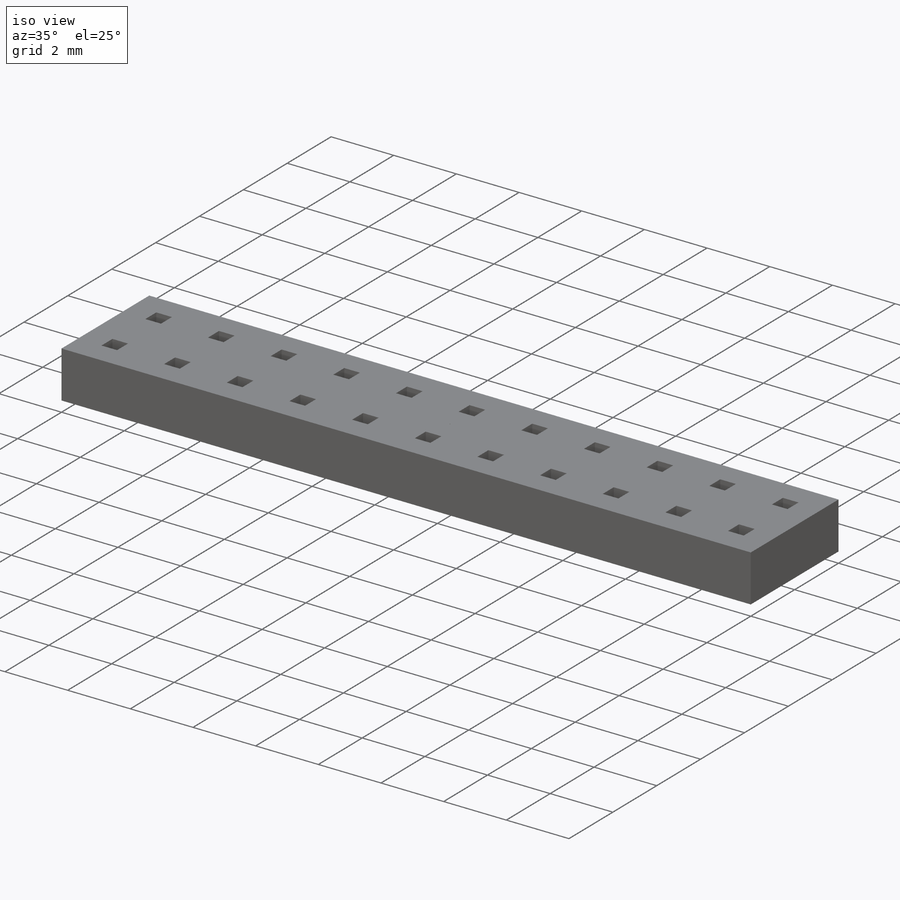
[diagram: iso view]
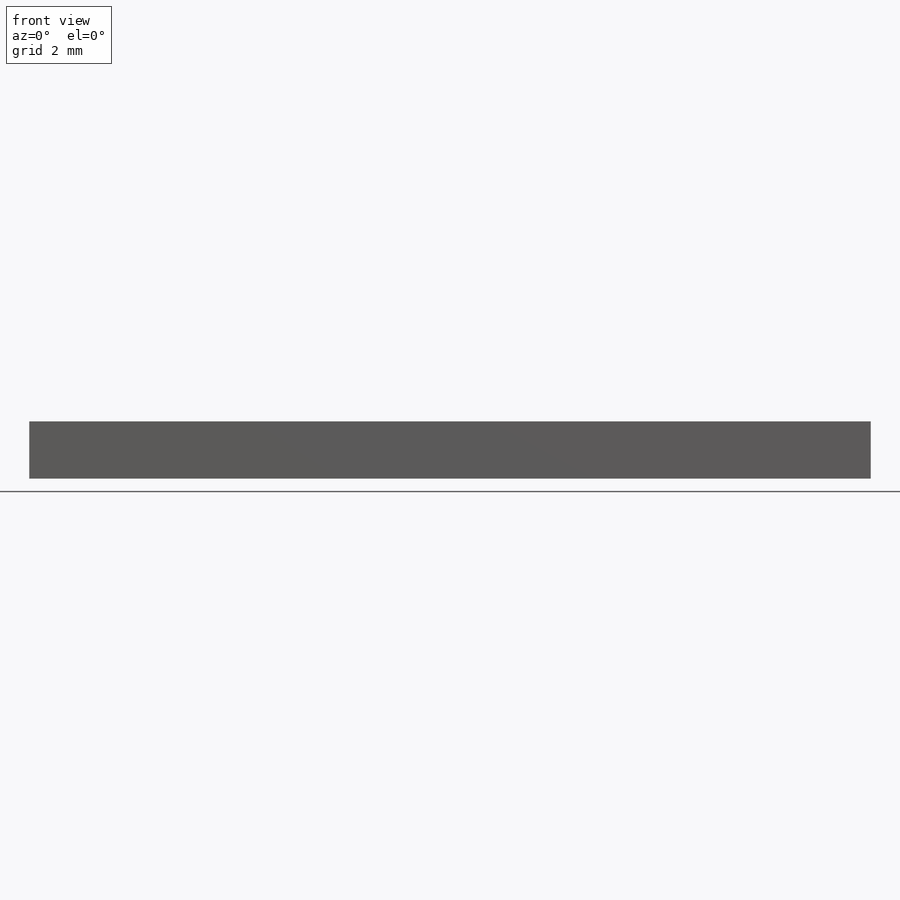
[diagram: front view]
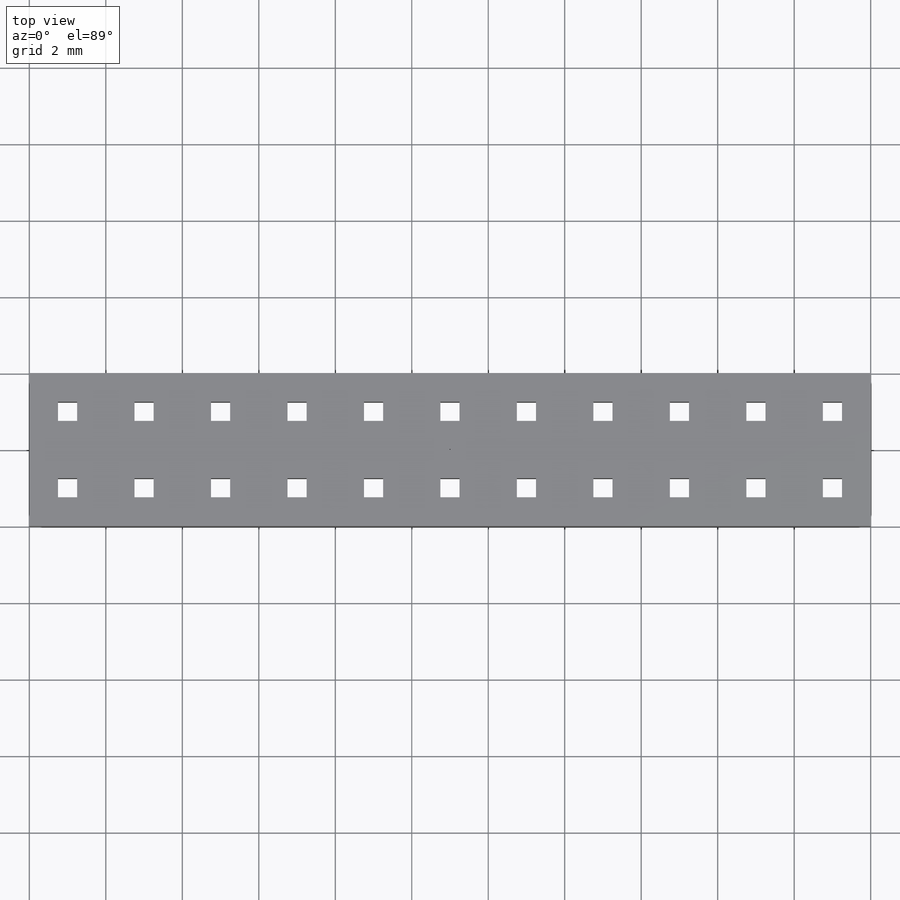
[diagram: top view]
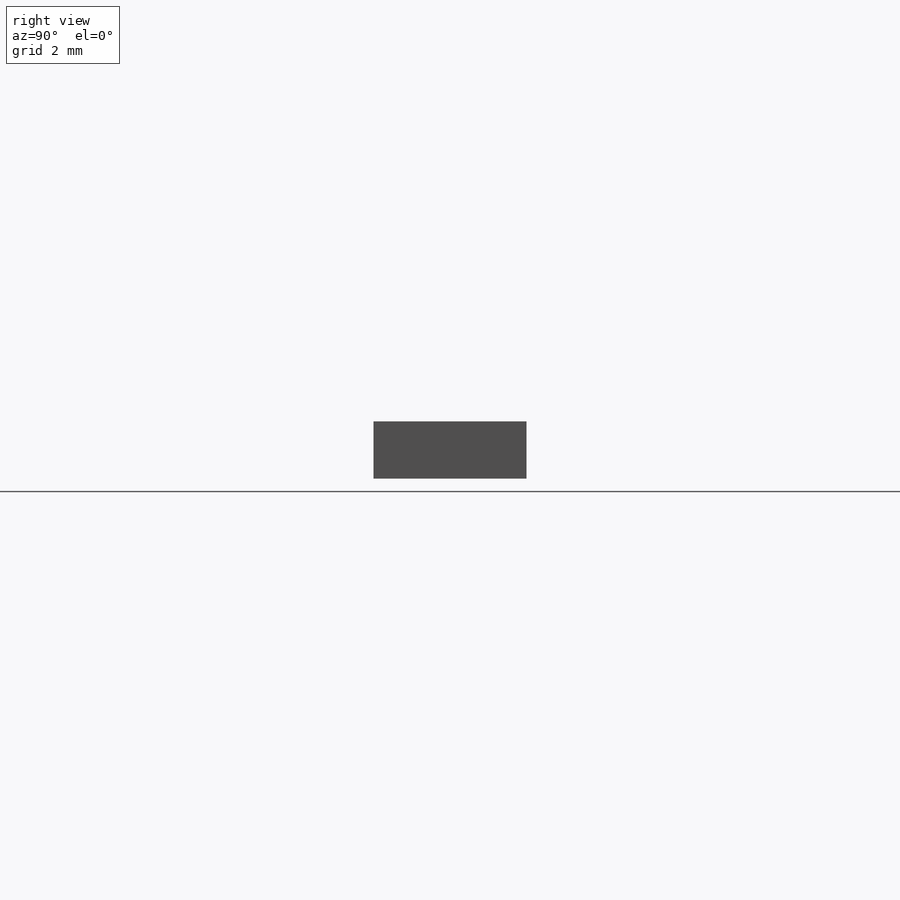
[diagram: right view]
SOLIDWORKS PART (.sldprt)
format: sldprt  version: not decoded by parser v0  size: 262,144 bytes
history: native  units: mm
features: cut_extrude x5, sketch x4, extrude x2, plane x2, material x1 (+11 scaffold rows collapsed)
feature tree (25):
  scaffold x11  (default folders/planes/origin — collapsed)
  material  "Material <not specified>"
  sketch  "Sketch1"
  extrude  "Boss-Extrude1"  Depth=1.5mm
  sketch  "Sketch2"  dims[D1=11.0 D2=2.0]
  cut_extrude  "Cut-Extrude1"  Depth=2mm
  sketch  "Sketch3"  dims[D1=~0.067594mm]
  cut_extrude  "Cut-Extrude2"  Depth=1.5mm
  plane  "Plane1"
  plane  "Plane2"
  cut_extrude  "Axis2"  [1 undecoded]
  sketch  "Sketch4"  dims[D1=~0.510324mm]
  extrude  "Boss-Extrude2"  Depth=2.5mm
  cut_extrude  "Axis3"  [1 undecoded]
  cut_extrude  "Axis4"  [1 undecoded]
decode coverage: 7 of 11 modeling features carry decoded parameters
note: ~ marks probable driven/reference dimensions
note: 3 parameter values undecoded
summary: no parameter record found for 3 features
note: suppression state not decoded; provenance and decode notes live in map.json
